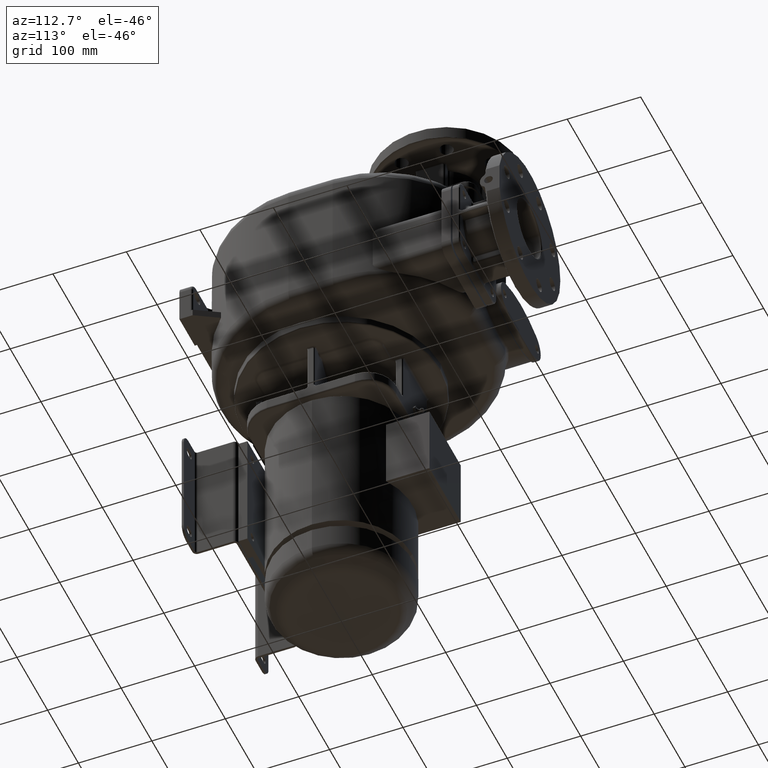
[diagram: clean part render]
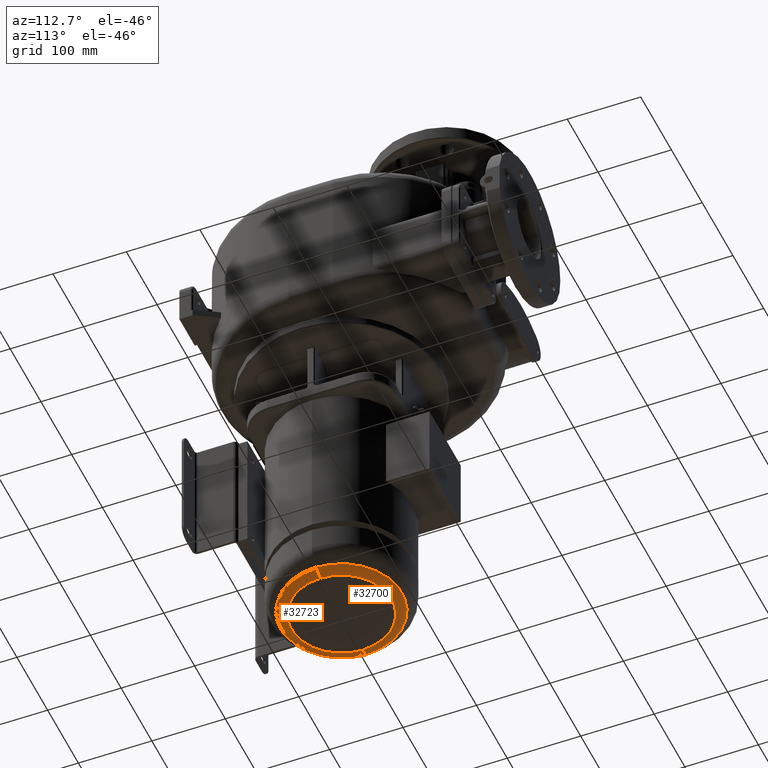
[diagram: same view with one multi-face feature highlighted, each face labeled with its STEP entity id]
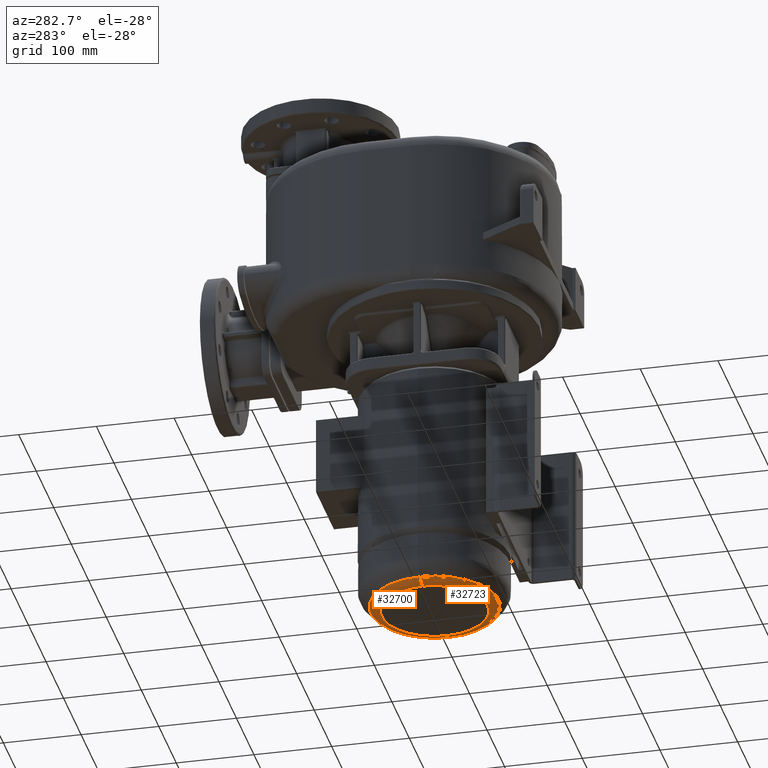
[diagram: same view with one multi-face feature highlighted, each face labeled with its STEP entity id]
A machine part, auxiliary view. The highlighted faces form ONE feature: a constant-radius fillet chain: 2 tangent blend faces with common blend radius 20 mm. The faces share edges in the B-rep.
A second angle (auxiliary view) of the same feature is appended — it is thin or edge-on in the first view.
Their STEP definitions:
[1] entity #32700 (Torus):
#13188=CARTESIAN_POINT('',(9.237056564881E-14,-1.598720155460E-14,
-2.951421367397E2));
#13189=DIRECTION('',(0.E0,0.E0,-1.E0));
#13190=DIRECTION('',(-1.E0,-9.503585662165E-11,0.E0));
#13191=AXIS2_PLACEMENT_3D('',#13188,#13189,#13190);
#13193=CARTESIAN_POINT('',(-6.821574175076E1,-6.199012159146E-8,-2.81E2));
#13194=DIRECTION('',(-9.087360759719E-10,1.E0,0.E0));
#13195=DIRECTION('',(0.E0,0.E0,-1.E0));
#13196=AXIS2_PLACEMENT_3D('',#13193,#13194,#13195);
#13203=CARTESIAN_POINT('',(9.237056564881E-14,-1.598720155460E-14,-3.01E2));
#13204=DIRECTION('',(0.E0,0.E0,-1.E0));
#13205=DIRECTION('',(-1.E0,-9.087362118187E-10,0.E0));
#13206=AXIS2_PLACEMENT_3D('',#13203,#13204,#13205);
#13208=CARTESIAN_POINT('',(6.821574175076E1,6.199015345488E-8,-2.81E2));
#13209=DIRECTION('',(9.087360239302E-10,-1.E0,0.E0));
#13210=DIRECTION('',(0.E0,0.E0,-1.E0));
#13211=AXIS2_PLACEMENT_3D('',#13208,#13209,#13210);
#15373=CARTESIAN_POINT('',(6.821574175076E1,6.199001776266E-8,-3.01E2));
#15374=CARTESIAN_POINT('',(-6.821574175076E1,-6.199013514509E-8,-3.01E2));
#15375=VERTEX_POINT('',#15373);
#15376=VERTEX_POINT('',#15374);
#15377=CARTESIAN_POINT('',(8.235787625849E1,7.826978076296E-9,
-2.951421367397E2));
#15378=CARTESIAN_POINT('',(-8.235787625849E1,-7.826958281999E-9,
-2.951421367397E2));
#15379=VERTEX_POINT('',#15377);
#15380=VERTEX_POINT('',#15378);
#32686=CARTESIAN_POINT('',(9.237056564881E-14,-1.598720155460E-14,-2.81E2));
#32687=DIRECTION('',(0.E0,0.E0,1.E0));
#32688=DIRECTION('',(-9.999473628469E-1,-1.026019178663E-2,0.E0));
#32689=AXIS2_PLACEMENT_3D('',#32686,#32687,#32688);
#32690=TOROIDAL_SURFACE('',#32689,6.821574175076E1,2.E1);
#32692=ORIENTED_EDGE('',*,*,#32691,.T.);
#32694=ORIENTED_EDGE('',*,*,#32693,.T.);
#32695=ORIENTED_EDGE('',*,*,#32680,.F.);
#32697=ORIENTED_EDGE('',*,*,#32696,.F.);
#32698=EDGE_LOOP('',(#32692,#32694,#32695,#32697));
#32699=FACE_OUTER_BOUND('',#32698,.F.);
#32700=ADVANCED_FACE('',(#32699),#32690,.T.);
#13192=CIRCLE('',#13191,8.235787625849E1);
#13197=CIRCLE('',#13196,2.E1);
#13207=CIRCLE('',#13206,6.821574175076E1);
#13212=CIRCLE('',#13211,2.E1);
#32680=EDGE_CURVE('',#15380,#15379,#13192,.T.);
#32691=EDGE_CURVE('',#15376,#15375,#13207,.T.);
#32693=EDGE_CURVE('',#15375,#15379,#13212,.T.);
#32696=EDGE_CURVE('',#15376,#15380,#13197,.T.);
[2] entity #32723 (Torus):
#13174=CARTESIAN_POINT('',(2.131629207280E-14,5.151435834261E-14,
-2.951421367397E2));
#13175=DIRECTION('',(0.E0,0.E0,-1.E0));
#13176=DIRECTION('',(1.E0,9.503555600889E-11,0.E0));
#13177=AXIS2_PLACEMENT_3D('',#13174,#13175,#13176);
#13193=CARTESIAN_POINT('',(-6.821574175076E1,-6.199012159146E-8,-2.81E2));
#13194=DIRECTION('',(-9.087360759719E-10,1.E0,0.E0));
#13195=DIRECTION('',(0.E0,0.E0,-1.E0));
#13196=AXIS2_PLACEMENT_3D('',#13193,#13194,#13195);
#13198=CARTESIAN_POINT('',(2.131629207280E-14,5.151435834261E-14,-3.01E2));
#13199=DIRECTION('',(0.E0,0.E0,-1.E0));
#13200=DIRECTION('',(1.E0,9.087340349504E-10,0.E0));
#13201=AXIS2_PLACEMENT_3D('',#13198,#13199,#13200);
#13208=CARTESIAN_POINT('',(6.821574175076E1,6.199015345488E-8,-2.81E2));
#13209=DIRECTION('',(9.087360239302E-10,-1.E0,0.E0));
#13210=DIRECTION('',(0.E0,0.E0,-1.E0));
#13211=AXIS2_PLACEMENT_3D('',#13208,#13209,#13210);
#15373=CARTESIAN_POINT('',(6.821574175076E1,6.199001776266E-8,-3.01E2));
#15374=CARTESIAN_POINT('',(-6.821574175076E1,-6.199013514509E-8,-3.01E2));
#15375=VERTEX_POINT('',#15373);
#15376=VERTEX_POINT('',#15374);
#15377=CARTESIAN_POINT('',(8.235787625849E1,7.826978076296E-9,
-2.951421367397E2));
#15378=CARTESIAN_POINT('',(-8.235787625849E1,-7.826958281999E-9,
-2.951421367397E2));
#15379=VERTEX_POINT('',#15377);
#15380=VERTEX_POINT('',#15378);
#32712=CARTESIAN_POINT('',(2.131629207280E-14,5.151435834261E-14,-2.81E2));
#32713=DIRECTION('',(0.E0,0.E0,1.E0));
#32714=DIRECTION('',(9.999473628469E-1,1.026019178663E-2,0.E0));
#32715=AXIS2_PLACEMENT_3D('',#32712,#32713,#32714);
#32716=TOROIDAL_SURFACE('',#32715,6.821574175076E1,2.E1);
#32717=ORIENTED_EDGE('',*,*,#32706,.T.);
#32718=ORIENTED_EDGE('',*,*,#32696,.T.);
#32719=ORIENTED_EDGE('',*,*,#32666,.F.);
#32720=ORIENTED_EDGE('',*,*,#32693,.F.);
#32721=EDGE_LOOP('',(#32717,#32718,#32719,#32720));
#32722=FACE_OUTER_BOUND('',#32721,.F.);
#32723=ADVANCED_FACE('',(#32722),#32716,.T.);
#13178=CIRCLE('',#13177,8.235787625849E1);
#13197=CIRCLE('',#13196,2.E1);
#13202=CIRCLE('',#13201,6.821574175076E1);
#13212=CIRCLE('',#13211,2.E1);
#32666=EDGE_CURVE('',#15379,#15380,#13178,.T.);
#32693=EDGE_CURVE('',#15375,#15379,#13212,.T.);
#32696=EDGE_CURVE('',#15376,#15380,#13197,.T.);
#32706=EDGE_CURVE('',#15375,#15376,#13202,.T.);